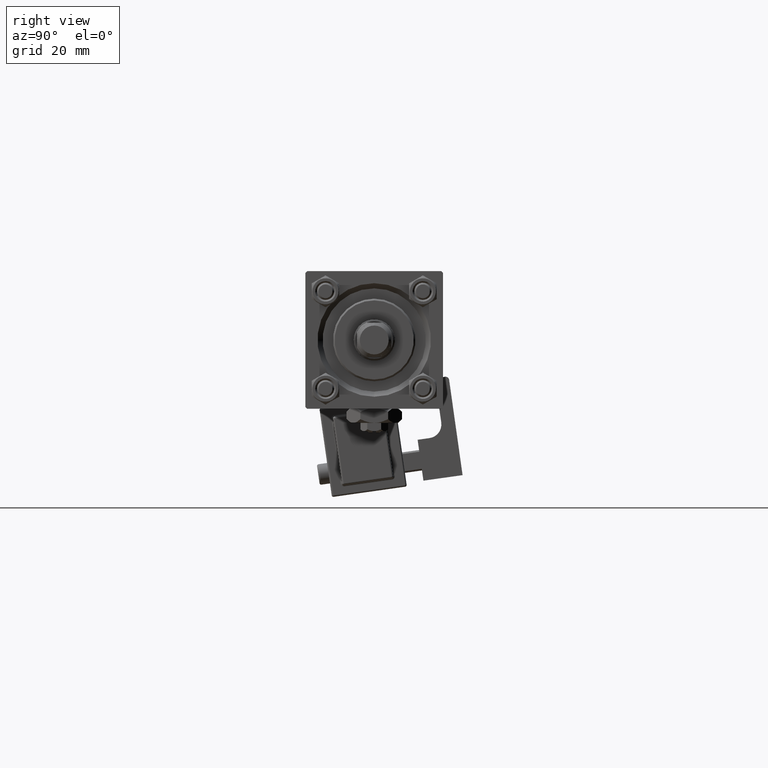
[diagram: clean part render]
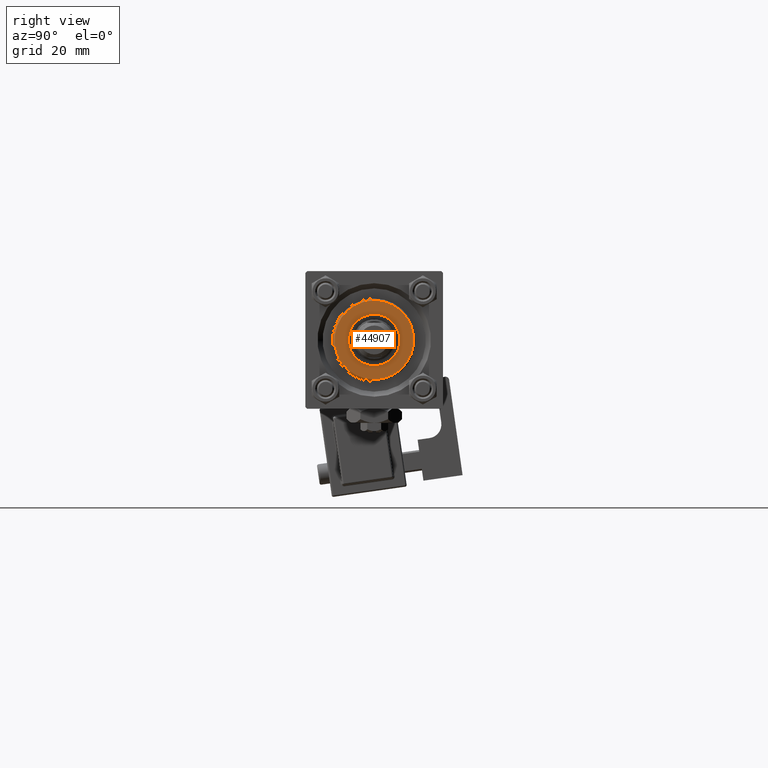
[diagram: same view with one face highlighted and labeled with its STEP entity id]
A machine part, right view. The second image highlights one B-rep face of the part: STEP entity #44907.
In plain terms, the highlighted planar face has unit normal (1, 0, -0).
Its self-contained STEP definition (entity closure, byte-faithful):
#562 = CARTESIAN_POINT ( 'NONE',  ( 0.000000000000000000, 0.000000000000000000, 35.70000000000000284 ) ) ;
#872 = PLANE ( 'NONE',  #43283 ) ;
#3730 = EDGE_LOOP ( 'NONE', ( #44796, #30688 ) ) ;
#5865 = EDGE_CURVE ( 'NONE', #43552, #33093, #43775, .T. ) ;
#8583 = CARTESIAN_POINT ( 'NONE',  ( 0.000000000000000000, 0.000000000000000000, 35.70000000000000284 ) ) ;
#8866 = DIRECTION ( 'NONE',  ( 1.000000000000000000, 0.000000000000000000, -0.000000000000000000 ) ) ;
#9096 = DIRECTION ( 'NONE',  ( 0.000000000000000000, 0.000000000000000000, 1.000000000000000000 ) ) ;
#11427 = AXIS2_PLACEMENT_3D ( 'NONE', #43340, #52691, #35633 ) ;
#12989 = CARTESIAN_POINT ( 'NONE',  ( -11.49999999999999645, 0.000000000000000000, 35.70000000000000284 ) ) ;
#14206 = EDGE_CURVE ( 'NONE', #42624, #42387, #18107, .T. ) ;
#17135 = ORIENTED_EDGE ( 'NONE', *, *, #5865, .T. ) ;
#18107 = CIRCLE ( 'NONE', #38332, 7.500000000000000888 ) ;
#18904 = DIRECTION ( 'NONE',  ( 0.000000000000000000, 0.000000000000000000, 1.000000000000000000 ) ) ;
#21097 = CIRCLE ( 'NONE', #11427, 7.500000000000000888 ) ;
#21549 = FACE_OUTER_BOUND ( 'NONE', #33531, .T. ) ;
#22727 = EDGE_CURVE ( 'NONE', #42387, #42624, #21097, .T. ) ;
#26611 = AXIS2_PLACEMENT_3D ( 'NONE', #562, #9096, #34743 ) ;
#29261 = CIRCLE ( 'NONE', #26611, 11.49999999999999645 ) ;
#29290 = FACE_BOUND ( 'NONE', #3730, .T. ) ;
#29753 = CARTESIAN_POINT ( 'NONE',  ( 0.000000000000000000, 0.000000000000000000, 35.70000000000000284 ) ) ;
#30688 = ORIENTED_EDGE ( 'NONE', *, *, #22727, .F. ) ;
#31061 = CARTESIAN_POINT ( 'NONE',  ( 0.000000000000000000, 0.000000000000000000, 35.70000000000000284 ) ) ;
#33093 = VERTEX_POINT ( 'NONE', #41300 ) ;
#33531 = EDGE_LOOP ( 'NONE', ( #17135, #46764 ) ) ;
#34743 = DIRECTION ( 'NONE',  ( 1.000000000000000000, 0.000000000000000000, 0.000000000000000000 ) ) ;
#35633 = DIRECTION ( 'NONE',  ( 1.000000000000000000, 0.000000000000000000, 0.000000000000000000 ) ) ;
#38002 = DIRECTION ( 'NONE',  ( 0.000000000000000000, 0.000000000000000000, 1.000000000000000000 ) ) ;
#38332 = AXIS2_PLACEMENT_3D ( 'NONE', #29753, #38002, #50402 ) ;
#41188 = AXIS2_PLACEMENT_3D ( 'NONE', #31061, #18904, #43707 ) ;
#41300 = CARTESIAN_POINT ( 'NONE',  ( 11.49999999999999645, 1.438959988998139963E-15, 35.70000000000000284 ) ) ;
#41947 = DIRECTION ( 'NONE',  ( 0.000000000000000000, 0.000000000000000000, 1.000000000000000000 ) ) ;
#42387 = VERTEX_POINT ( 'NONE', #48873 ) ;
#42624 = VERTEX_POINT ( 'NONE', #44145 ) ;
#43283 = AXIS2_PLACEMENT_3D ( 'NONE', #8583, #41947, #8866 ) ;
#43340 = CARTESIAN_POINT ( 'NONE',  ( 0.000000000000000000, 0.000000000000000000, 35.70000000000000284 ) ) ;
#43552 = VERTEX_POINT ( 'NONE', #12989 ) ;
#43707 = DIRECTION ( 'NONE',  ( 1.000000000000000000, 0.000000000000000000, 0.000000000000000000 ) ) ;
#43775 = CIRCLE ( 'NONE', #41188, 11.49999999999999645 ) ;
#44145 = CARTESIAN_POINT ( 'NONE',  ( 7.500000000000000888, 0.000000000000000000, 35.70000000000000284 ) ) ;
#44796 = ORIENTED_EDGE ( 'NONE', *, *, #14206, .F. ) ;
#44907 = ADVANCED_FACE ( 'NONE', ( #29290, #21549 ), #872, .T. ) ;
#46764 = ORIENTED_EDGE ( 'NONE', *, *, #50486, .T. ) ;
#48873 = CARTESIAN_POINT ( 'NONE',  ( -7.500000000000000888, 9.184850993605149917E-16, 35.70000000000000284 ) ) ;
#50402 = DIRECTION ( 'NONE',  ( 1.000000000000000000, 0.000000000000000000, 0.000000000000000000 ) ) ;
#50486 = EDGE_CURVE ( 'NONE', #33093, #43552, #29261, .T. ) ;
#52691 = DIRECTION ( 'NONE',  ( 0.000000000000000000, 0.000000000000000000, 1.000000000000000000 ) ) ;